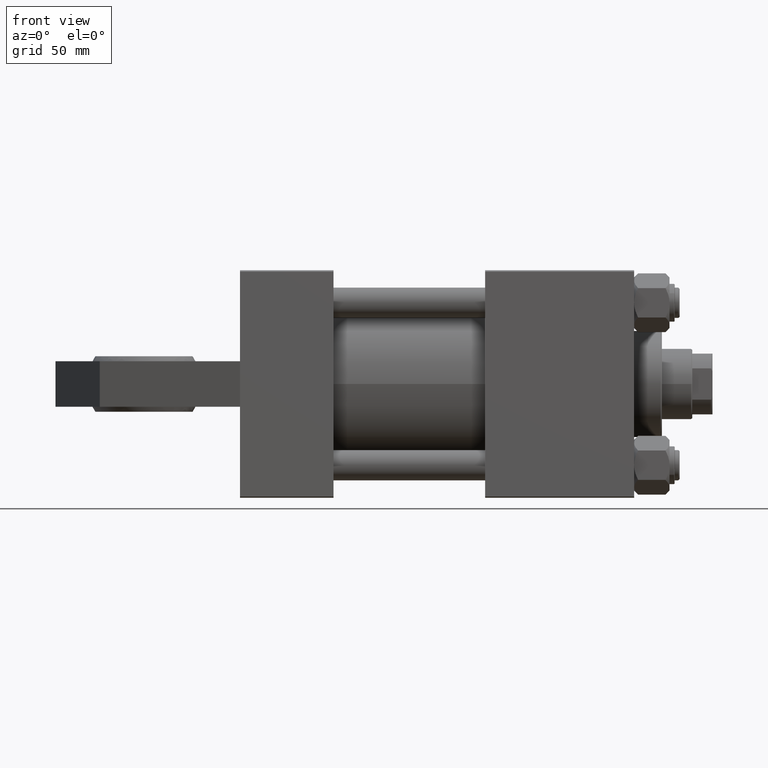
[diagram: clean part render]
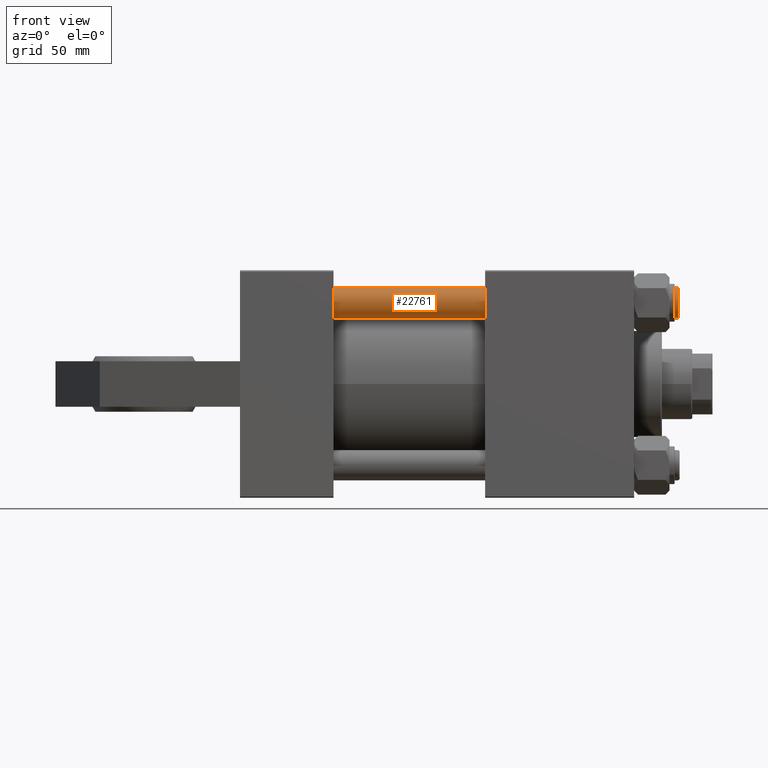
[diagram: same view with one face highlighted and labeled with its STEP entity id]
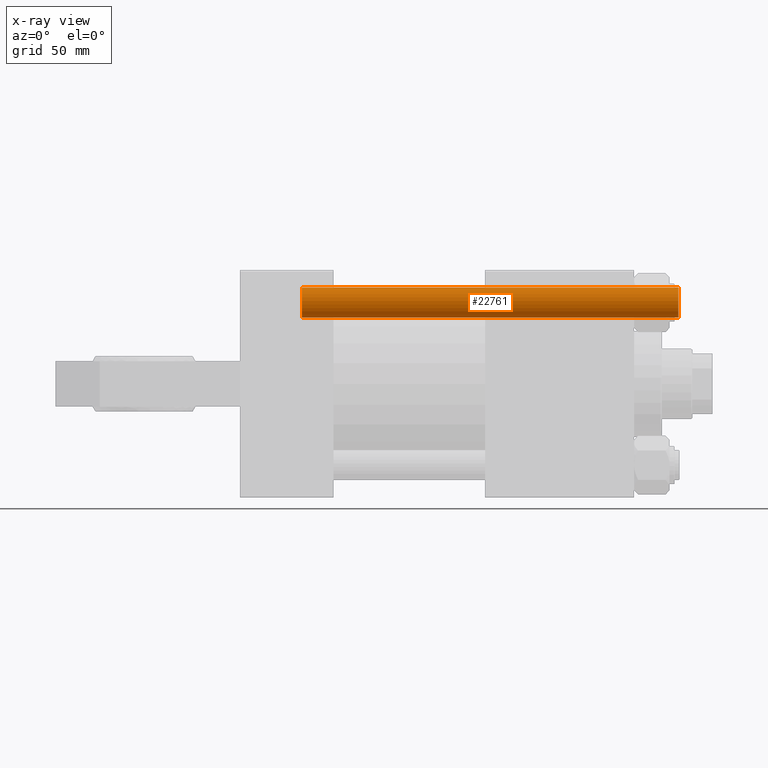
[diagram: x-ray of the same camera — body ghosted, the highlighted face saturated]
A machine part, front view. The second image highlights one B-rep face of the part: STEP entity #22761.
The next image is the same camera in x-ray: the body ghosted, the highlighted face saturated — about 0% of this face is hidden behind the body in this view.
In plain terms, the highlighted cylindrical surface (edge-blend (fillet) strip) has radius 6 mm, axis along (-1, 0, -0).
Its self-contained STEP definition (entity closure, byte-faithful):
#532 = VECTOR ( 'NONE', #39065, 1000.000000000000000 ) ;
#960 = CARTESIAN_POINT ( 'NONE',  ( 6.000000000000000888, 7.347880794884120722E-16, 0.5000000000000004441 ) ) ;
#2453 = DIRECTION ( 'NONE',  ( -0.000000000000000000, -0.000000000000000000, -1.000000000000000000 ) ) ;
#3745 = DIRECTION ( 'NONE',  ( 1.000000000000000000, 0.000000000000000000, 0.000000000000000000 ) ) ;
#3769 = DIRECTION ( 'NONE',  ( -0.000000000000000000, -0.000000000000000000, -1.000000000000000000 ) ) ;
#4800 = EDGE_CURVE ( 'NONE', #5816, #10860, #32422, .T. ) ;
#5816 = VERTEX_POINT ( 'NONE', #39898 ) ;
#7837 = FACE_OUTER_BOUND ( 'NONE', #11603, .T. ) ;
#7972 = DIRECTION ( 'NONE',  ( 0.000000000000000000, 0.000000000000000000, -1.000000000000000000 ) ) ;
#10860 = VERTEX_POINT ( 'NONE', #17908 ) ;
#11112 = ORIENTED_EDGE ( 'NONE', *, *, #34569, .T. ) ;
#11603 = EDGE_LOOP ( 'NONE', ( #27930, #13241, #11112, #12635 ) ) ;
#11645 = DIRECTION ( 'NONE',  ( -1.000000000000000000, 0.000000000000000000, 0.000000000000000000 ) ) ;
#12635 = ORIENTED_EDGE ( 'NONE', *, *, #35665, .F. ) ;
#13241 = ORIENTED_EDGE ( 'NONE', *, *, #16088, .T. ) ;
#14445 = CARTESIAN_POINT ( 'NONE',  ( 0.000000000000000000, 0.000000000000000000, 150.0000000000000000 ) ) ;
#14829 = VECTOR ( 'NONE', #2453, 1000.000000000000000 ) ;
#15100 = CARTESIAN_POINT ( 'NONE',  ( 0.000000000000000000, 0.000000000000000000, 149.5000000000000000 ) ) ;
#15880 = AXIS2_PLACEMENT_3D ( 'NONE', #14445, #3769, #11645 ) ;
#15961 = CARTESIAN_POINT ( 'NONE',  ( -6.000000000000000888, 0.000000000000000000, 150.0000000000000000 ) ) ;
#16088 = EDGE_CURVE ( 'NONE', #10860, #19022, #49199, .T. ) ;
#17908 = CARTESIAN_POINT ( 'NONE',  ( 6.000000000000000888, 7.347880794884120722E-16, 149.5000000000000000 ) ) ;
#17957 = CARTESIAN_POINT ( 'NONE',  ( 6.000000000000000888, 7.347880794884120722E-16, 150.0000000000000000 ) ) ;
#19022 = VERTEX_POINT ( 'NONE', #960 ) ;
#22583 = CYLINDRICAL_SURFACE ( 'NONE', #15880, 6.000000000000000888 ) ;
#22761 = ADVANCED_FACE ( 'NONE', ( #7837 ), #22583, .T. ) ;
#23581 = LINE ( 'NONE', #15961, #532 ) ;
#27930 = ORIENTED_EDGE ( 'NONE', *, *, #4800, .T. ) ;
#32160 = CIRCLE ( 'NONE', #32951, 6.000000000000000888 ) ;
#32422 = CIRCLE ( 'NONE', #46239, 6.000000000000000888 ) ;
#32951 = AXIS2_PLACEMENT_3D ( 'NONE', #33737, #42103, #3745 ) ;
#33737 = CARTESIAN_POINT ( 'NONE',  ( 0.000000000000000000, 0.000000000000000000, 0.5000000000000004441 ) ) ;
#34569 = EDGE_CURVE ( 'NONE', #19022, #35470, #32160, .T. ) ;
#35470 = VERTEX_POINT ( 'NONE', #48758 ) ;
#35665 = EDGE_CURVE ( 'NONE', #5816, #35470, #23581, .T. ) ;
#39065 = DIRECTION ( 'NONE',  ( -0.000000000000000000, -0.000000000000000000, -1.000000000000000000 ) ) ;
#39457 = DIRECTION ( 'NONE',  ( 1.000000000000000000, 0.000000000000000000, 0.000000000000000000 ) ) ;
#39898 = CARTESIAN_POINT ( 'NONE',  ( -6.000000000000000888, 0.000000000000000000, 149.5000000000000000 ) ) ;
#42103 = DIRECTION ( 'NONE',  ( -0.000000000000000000, -0.000000000000000000, 1.000000000000000000 ) ) ;
#46239 = AXIS2_PLACEMENT_3D ( 'NONE', #15100, #7972, #39457 ) ;
#48758 = CARTESIAN_POINT ( 'NONE',  ( -6.000000000000000888, 0.000000000000000000, 0.5000000000000004441 ) ) ;
#49199 = LINE ( 'NONE', #17957, #14829 ) ;